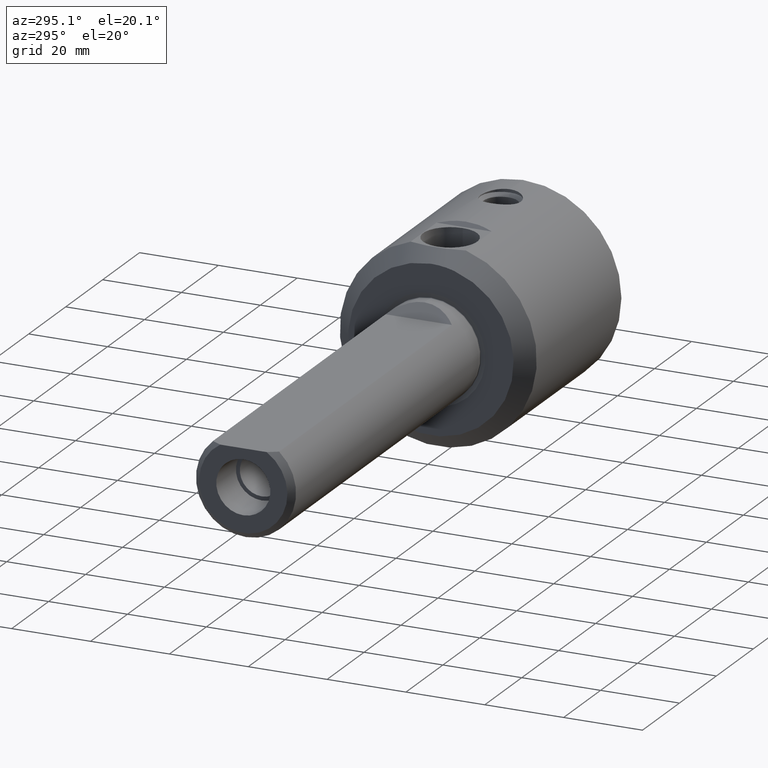
[diagram: clean part render]
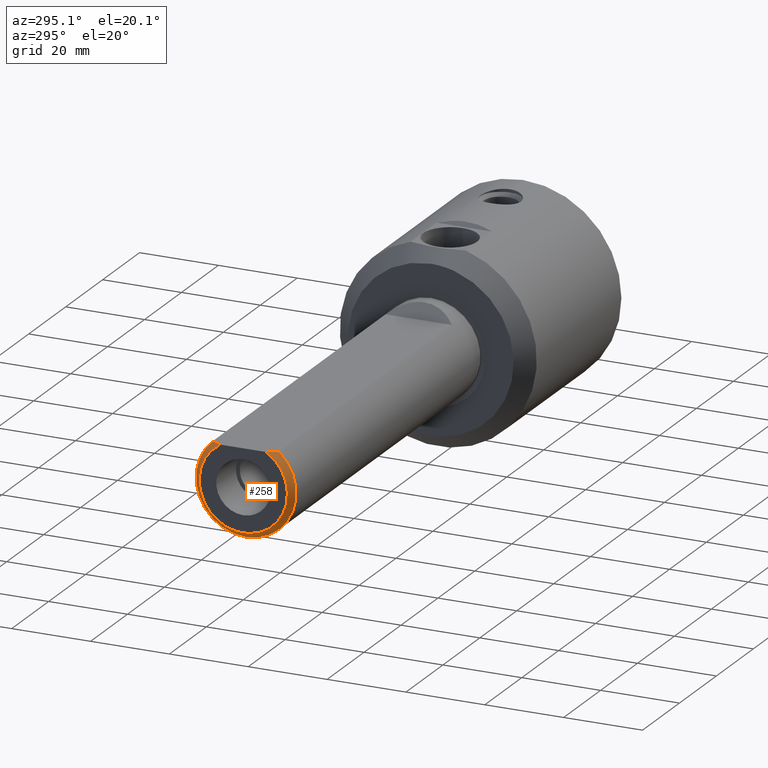
[diagram: same view with one face highlighted and labeled with its STEP entity id]
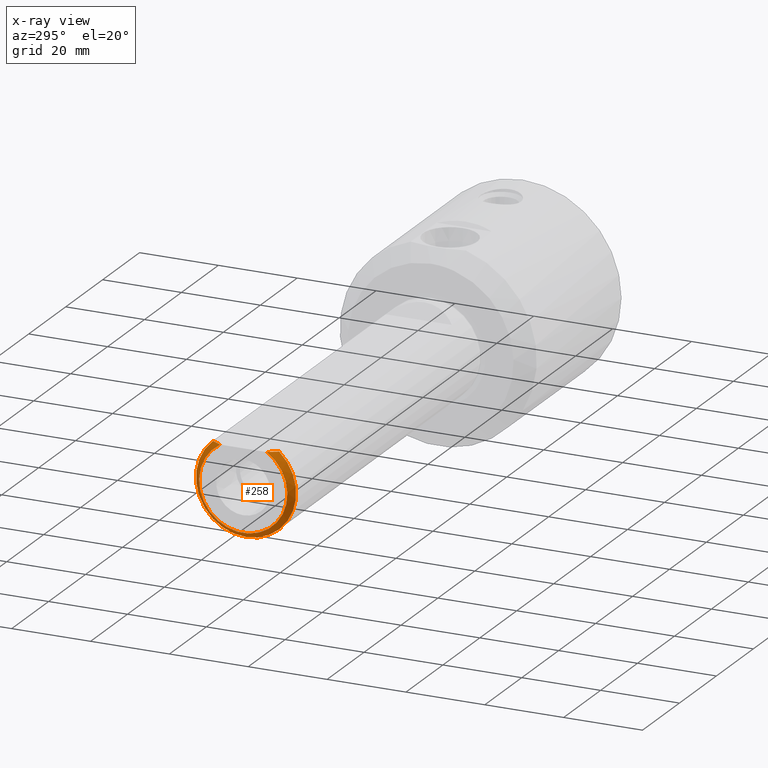
[diagram: x-ray of the same camera — body ghosted, the highlighted face saturated]
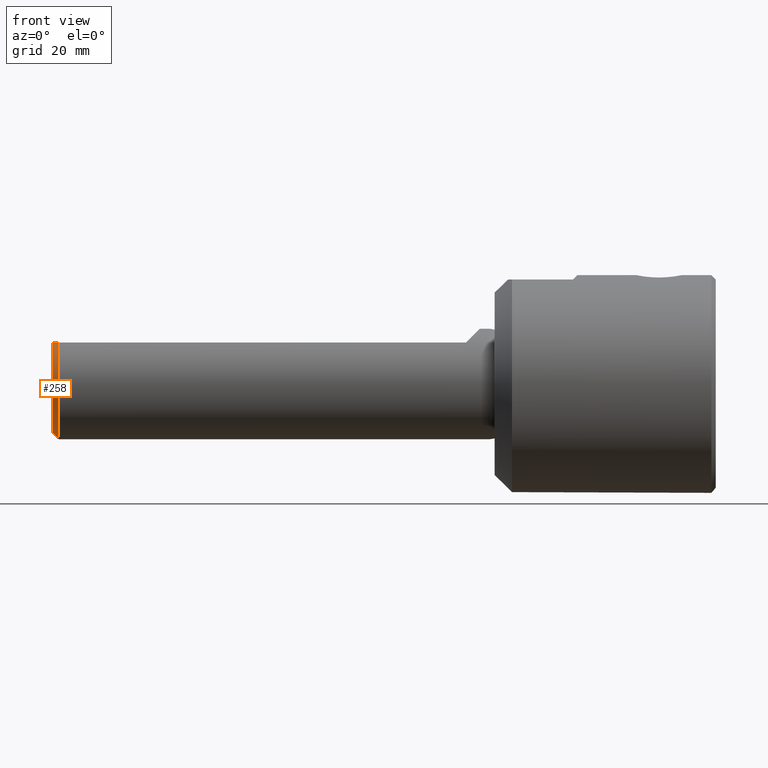
[diagram: same view with one face highlighted and labeled with its STEP entity id]
A machine part, auxiliary view. The second image highlights one B-rep face of the part: STEP entity #258.
The next image is the same camera in x-ray: the body ghosted, the highlighted face saturated — about 0% of this face is hidden behind the body in this view.
A second angle (front view) of the same face is appended — the face is thin or edge-on in the first view.
In plain terms, the highlighted conical surface has half-angle 45 deg.
Its self-contained STEP definition (entity closure, byte-faithful):
#2 = B_SPLINE_CURVE_WITH_KNOTS ( 'NONE', 3,
 ( #570, #804, #437, #707 ),
 .UNSPECIFIED., .F., .F.,
 ( 4, 4 ),
 ( 0.02355687609346893141, 0.02648168850323014134 ),
 .UNSPECIFIED. ) ;
#4 = EDGE_CURVE ( 'NONE', #1327, #1113, #509, .T. ) ;
#6 = AXIS2_PLACEMENT_3D ( 'NONE', #540, #1161, #410 ) ;
#208 = EDGE_LOOP ( 'NONE', ( #1139, #244, #869, #1096 ) ) ;
#236 = CARTESIAN_POINT ( 'NONE',  ( 0.0000000000000000000, 5.890468996607998164, 9.519999999999997797 ) ) ;
#244 = ORIENTED_EDGE ( 'NONE', *, *, #782, .T. ) ;
#247 = CARTESIAN_POINT ( 'NONE',  ( 0.0000000000000000000, 5.890468996607998164, 9.519999999999997797 ) ) ;
#258 = ADVANCED_FACE ( 'NONE', ( #319 ), #1598, .T. ) ;
#289 = VERTEX_POINT ( 'NONE', #1459 ) ;
#316 = DIRECTION ( 'NONE',  ( 0.0000000000000000000, 0.0000000000000000000, 1.000000000000000000 ) ) ;
#319 = FACE_OUTER_BOUND ( 'NONE', #208, .T. ) ;
#327 = EDGE_CURVE ( 'NONE', #1327, #289, #912, .T. ) ;
#329 = DIRECTION ( 'NONE',  ( 0.0000000000000000000, 0.0000000000000000000, 1.000000000000000000 ) ) ;
#330 = AXIS2_PLACEMENT_3D ( 'NONE', #1337, #1326, #316 ) ;
#410 = DIRECTION ( 'NONE',  ( 0.0000000000000000000, 0.0000000000000000000, -1.000000000000000000 ) ) ;
#437 = CARTESIAN_POINT ( 'NONE',  ( 0.4562198391003109421, -6.757527477294182461, 9.519999999999997797 ) ) ;
#451 = CARTESIAN_POINT ( 'NONE',  ( 1.499999999999994671, 8.398370377638748607, 9.519999999999997797 ) ) ;
#482 = CARTESIAN_POINT ( 'NONE',  ( 1.499999999999994671, 8.398370377638748607, 9.519999999999997797 ) ) ;
#509 = B_SPLINE_CURVE_WITH_KNOTS ( 'NONE', 3,
 ( #247, #1497, #1625, #482 ),
 .UNSPECIFIED., .F., .F.,
 ( 4, 4 ),
 ( 0.03875380854520359825, 0.04165344285908154087 ),
 .UNSPECIFIED. ) ;
#540 = CARTESIAN_POINT ( 'NONE',  ( 1.499999999999994671, 0.0000000000000000000, 0.0000000000000000000 ) ) ;
#570 = CARTESIAN_POINT ( 'NONE',  ( 1.499999999999993783, -8.398370377638748607, 9.519999999999997797 ) ) ;
#578 = VERTEX_POINT ( 'NONE', #702 ) ;
#586 = DIRECTION ( 'NONE',  ( -1.000000000000000000, -0.0000000000000000000, -0.0000000000000000000 ) ) ;
#655 = EDGE_CURVE ( 'NONE', #1113, #578, #864, .T. ) ;
#702 = CARTESIAN_POINT ( 'NONE',  ( 1.499999999999993783, -8.398370377638748607, 9.519999999999997797 ) ) ;
#707 = CARTESIAN_POINT ( 'NONE',  ( 0.0000000000000000000, -5.890468996607998164, 9.519999999999997797 ) ) ;
#765 = AXIS2_PLACEMENT_3D ( 'NONE', #1590, #586, #329 ) ;
#782 = EDGE_CURVE ( 'NONE', #578, #289, #2, .T. ) ;
#804 = CARTESIAN_POINT ( 'NONE',  ( 0.9639181193418469018, -7.588027517186263893, 9.519999999999997797 ) ) ;
#864 = CIRCLE ( 'NONE', #765, 12.69500000000000028 ) ;
#869 = ORIENTED_EDGE ( 'NONE', *, *, #327, .F. ) ;
#912 = CIRCLE ( 'NONE', #330, 11.19500000000000028 ) ;
#1096 = ORIENTED_EDGE ( 'NONE', *, *, #4, .T. ) ;
#1113 = VERTEX_POINT ( 'NONE', #451 ) ;
#1139 = ORIENTED_EDGE ( 'NONE', *, *, #655, .T. ) ;
#1161 = DIRECTION ( 'NONE',  ( 1.000000000000000000, 0.0000000000000000000, 0.0000000000000000000 ) ) ;
#1326 = DIRECTION ( 'NONE',  ( -1.000000000000000000, -0.0000000000000000000, -0.0000000000000000000 ) ) ;
#1327 = VERTEX_POINT ( 'NONE', #236 ) ;
#1337 = CARTESIAN_POINT ( 'NONE',  ( 0.0000000000000000000, 0.0000000000000000000, 0.0000000000000000000 ) ) ;
#1459 = CARTESIAN_POINT ( 'NONE',  ( 0.0000000000000000000, -5.890468996607998164, 9.519999999999997797 ) ) ;
#1497 = CARTESIAN_POINT ( 'NONE',  ( 0.4523711338835113005, 6.750212906089939402, 9.519999999999997797 ) ) ;
#1590 = CARTESIAN_POINT ( 'NONE',  ( 1.499999999999994671, 0.0000000000000000000, 0.0000000000000000000 ) ) ;
#1598 = CONICAL_SURFACE ( 'NONE', #6, 12.69500000000000028, 0.7853981633974499443 ) ;
#1625 = CARTESIAN_POINT ( 'NONE',  ( 0.9630703448802500066, 7.586746018954369397, 9.519999999999997797 ) ) ;